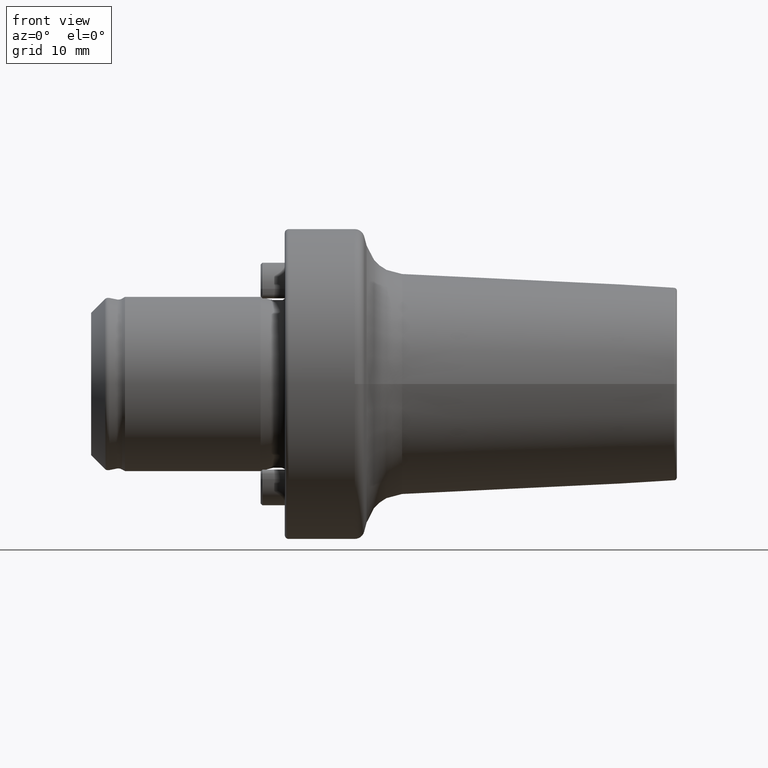
[diagram: clean part render]
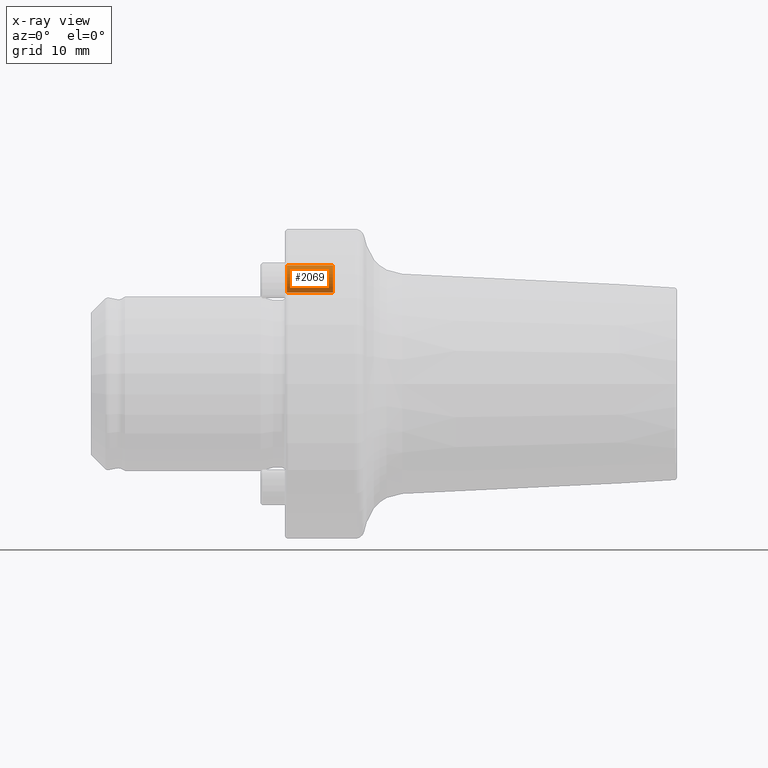
[diagram: x-ray — body ghosted, one internal face saturated and labeled with its STEP entity id]
A machine part, front view, then the same camera in x-ray: the body is ghosted and one INTERNAL B-rep face — a face not visible from any outside direction — is saturated and labeled: STEP entity #2069.
In plain terms, the highlighted cylindrical surface (edge-blend (fillet) strip) has radius 1.4 mm, axis along (-1, -0, -0).
Its self-contained STEP definition (entity closure, byte-faithful):
#3 = ORIENTED_EDGE ( 'NONE', *, *, #4468, .T. ) ;
#47 = ORIENTED_EDGE ( 'NONE', *, *, #4122, .F. ) ;
#104 = DIRECTION ( 'NONE',  ( -1.000000000000000000, -0.0000000000000000000, -0.0000000000000000000 ) ) ;
#125 = CARTESIAN_POINT ( 'NONE',  ( 0.0000000000000000000, 1.714505518806293200E-016, 9.450000000000001100 ) ) ;
#523 = VECTOR ( 'NONE', #1780, 1000.000000000000000 ) ;
#567 = LINE ( 'NONE', #1790, #523 ) ;
#732 = CARTESIAN_POINT ( 'NONE',  ( 0.2000000000000005100, 0.0000000000000000000, 12.25000000000000000 ) ) ;
#846 = VERTEX_POINT ( 'NONE', #3237 ) ;
#903 = CIRCLE ( 'NONE', #1640, 1.400000000000000100 ) ;
#909 = AXIS2_PLACEMENT_3D ( 'NONE', #4410, #4682, #4397 ) ;
#1502 = VERTEX_POINT ( 'NONE', #3013 ) ;
#1640 = AXIS2_PLACEMENT_3D ( 'NONE', #3119, #3074, #3043 ) ;
#1736 = VERTEX_POINT ( 'NONE', #732 ) ;
#1780 = DIRECTION ( 'NONE',  ( -1.000000000000000000, -0.0000000000000000000, -0.0000000000000000000 ) ) ;
#1790 = CARTESIAN_POINT ( 'NONE',  ( 0.0000000000000000000, 0.0000000000000000000, 12.24999999999999800 ) ) ;
#1967 = DIRECTION ( 'NONE',  ( 0.0000000000000000000, 0.0000000000000000000, 1.000000000000000000 ) ) ;
#1972 = DIRECTION ( 'NONE',  ( -1.000000000000000000, -0.0000000000000000000, -0.0000000000000000000 ) ) ;
#1981 = CARTESIAN_POINT ( 'NONE',  ( 5.000000000000000000, 0.0000000000000000000, 10.85000000000000000 ) ) ;
#2019 = CARTESIAN_POINT ( 'NONE',  ( 5.000000000000000000, 0.0000000000000000000, 12.24999999999999800 ) ) ;
#2069 = ADVANCED_FACE ( 'NONE', ( #2525 ), #2413, .F. ) ;
#2137 = VECTOR ( 'NONE', #104, 1000.000000000000000 ) ;
#2169 = EDGE_LOOP ( 'NONE', ( #47, #3, #5010, #4941 ) ) ;
#2315 = LINE ( 'NONE', #125, #2137 ) ;
#2413 = CYLINDRICAL_SURFACE ( 'NONE', #909, 1.399999999999998600 ) ;
#2505 = VERTEX_POINT ( 'NONE', #2019 ) ;
#2525 = FACE_OUTER_BOUND ( 'NONE', #2169, .T. ) ;
#3013 = CARTESIAN_POINT ( 'NONE',  ( 0.2000000000000005100, 1.836970198721028900E-016, 9.449999999999999300 ) ) ;
#3043 = DIRECTION ( 'NONE',  ( 0.0000000000000000000, 0.0000000000000000000, 1.000000000000000000 ) ) ;
#3074 = DIRECTION ( 'NONE',  ( -1.000000000000000000, -0.0000000000000000000, -0.0000000000000000000 ) ) ;
#3101 = CIRCLE ( 'NONE', #4430, 1.399999999999998600 ) ;
#3119 = CARTESIAN_POINT ( 'NONE',  ( 0.2000000000000005100, 0.0000000000000000000, 10.85000000000000000 ) ) ;
#3237 = CARTESIAN_POINT ( 'NONE',  ( 5.000000000000000000, 1.714505518806293200E-016, 9.450000000000001100 ) ) ;
#4122 = EDGE_CURVE ( 'NONE', #846, #2505, #3101, .T. ) ;
#4397 = DIRECTION ( 'NONE',  ( 0.0000000000000000000, 0.0000000000000000000, 1.000000000000000000 ) ) ;
#4410 = CARTESIAN_POINT ( 'NONE',  ( 0.0000000000000000000, 0.0000000000000000000, 10.85000000000000000 ) ) ;
#4430 = AXIS2_PLACEMENT_3D ( 'NONE', #1981, #1972, #1967 ) ;
#4468 = EDGE_CURVE ( 'NONE', #846, #1502, #2315, .T. ) ;
#4682 = DIRECTION ( 'NONE',  ( -1.000000000000000000, -0.0000000000000000000, -0.0000000000000000000 ) ) ;
#4737 = EDGE_CURVE ( 'NONE', #1502, #1736, #903, .T. ) ;
#4844 = EDGE_CURVE ( 'NONE', #2505, #1736, #567, .T. ) ;
#4941 = ORIENTED_EDGE ( 'NONE', *, *, #4844, .F. ) ;
#5010 = ORIENTED_EDGE ( 'NONE', *, *, #4737, .T. ) ;